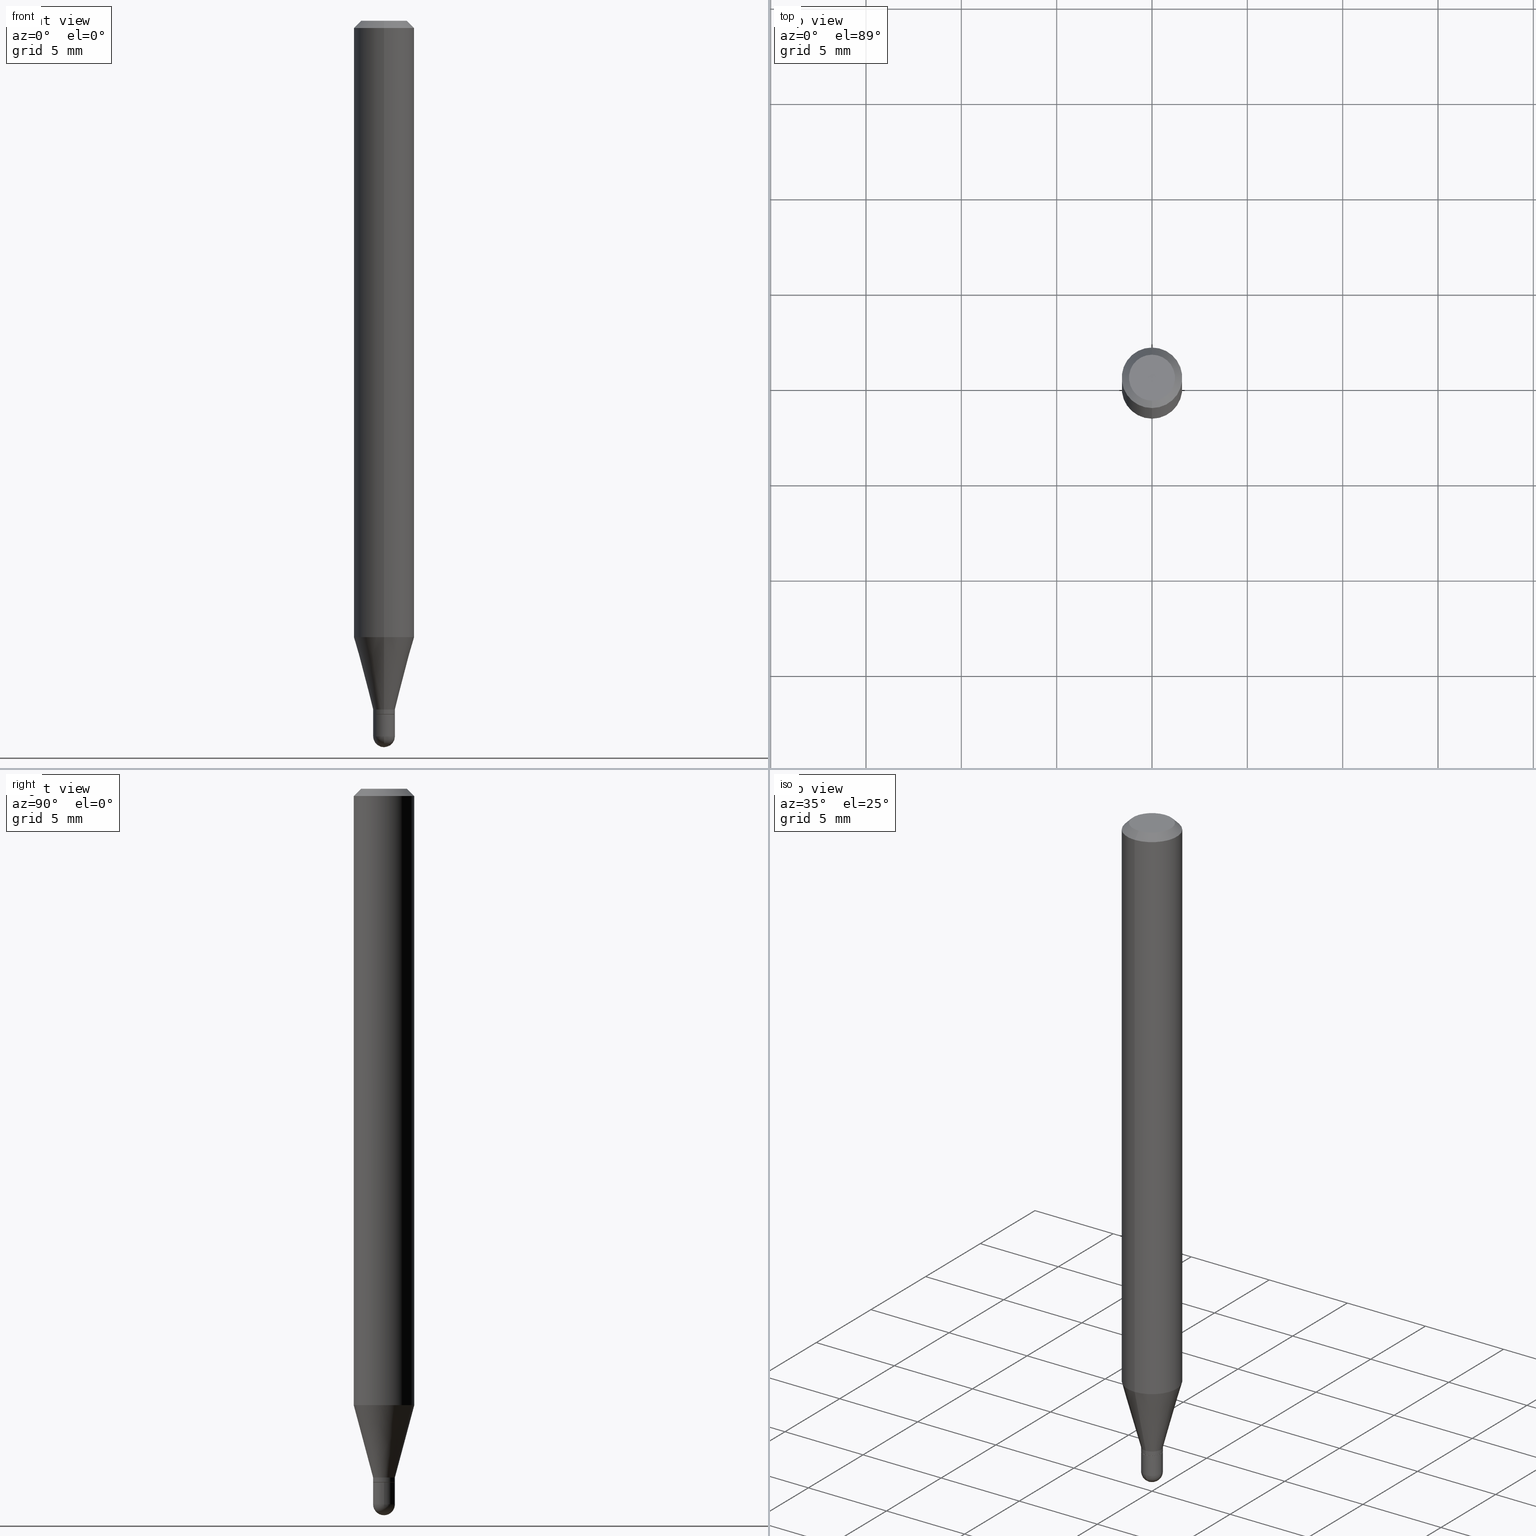
[diagram: canonical four-view strip — front | top / right | iso, engineering-drawing reading convention]
A machine part, canonical four-view strip (front | top / right | iso — engineering-drawing reading convention). The complete STEP part file that produces these views, byte-faithful:
ISO-10303-21;
HEADER;
FILE_DESCRIPTION (( 'STEP AP203' ),
    '1' );
FILE_NAME ('00780.STEP',
    '2024-03-07T18:19:26',
    ( '' ),
    ( '' ),
    'SwSTEP 2.0',
    'SolidWorks 2023',
    '' );
FILE_SCHEMA (( 'CONFIG_CONTROL_DESIGN' ));
ENDSEC;

DATA;
#1 = EDGE_LOOP ( 'NONE', ( #63, #200, #204, #195, #234 ) ) ;
#2 = CARTESIAN_POINT ( 'NONE',  ( -1.598721155459865688E-16, -0.02250000000000518599, -1.477500000000000036 ) ) ;
#3 = EDGE_CURVE ( 'NONE', #328, #434, #445, .T. ) ;
#4 = CARTESIAN_POINT ( 'NONE',  ( -1.571166602479404241E-16, -0.02249999999999992284, 7.855882383036822787E-17 ) ) ;
#5 = ADVANCED_FACE ( 'NONE', ( #418 ), #288, .T. ) ;
#6 = AXIS2_PLACEMENT_3D ( 'NONE', #472, #294, #150 ) ;
#7 = ORIENTED_EDGE ( 'NONE', *, *, #211, .T. ) ;
#8 = DATE_AND_TIME ( #484, #383 ) ;
#9 = DIRECTION ( 'NONE',  ( -2.445453483814696650E-29, 3.491503281349710871E-15, 1.000000000000000000 ) ) ;
#10 = CARTESIAN_POINT ( 'NONE',  ( 3.501911330457115844E-29, -4.999801277223385014E-15, -1.432000000000000162 ) ) ;
#11 = PERSON_AND_ORGANIZATION ( #131, #299 ) ;
#12 = CARTESIAN_POINT ( 'NONE',  ( 2.166495059304660082E-46, -3.093219584283591612E-32, -8.859277322769250209E-18 ) ) ;
#13 = CC_DESIGN_APPROVAL ( #424, ( #283 ) ) ;
#14 = APPROVAL_ROLE ( '' ) ;
#15 = EDGE_LOOP ( 'NONE', ( #254, #162 ) ) ;
#16 = AXIS2_PLACEMENT_3D ( 'NONE', #382, #417, #66 ) ;
#17 = VECTOR ( 'NONE', #454, 39.37007874015748143 ) ;
#18 = ORIENTED_EDGE ( 'NONE', *, *, #175, .F. ) ;
#19 = AXIS2_PLACEMENT_3D ( 'NONE', #349, #385, #69 ) ;
#20 = EDGE_CURVE ( 'NONE', #103, #124, #176, .T. ) ;
#21 = ORIENTED_EDGE ( 'NONE', *, *, #235, .T. ) ;
#22 = CIRCLE ( 'NONE', #29, 0.02249999999999999917 ) ;
#23 = DIRECTION ( 'NONE',  ( 2.438088387897960049E-29, -3.491481338843145188E-15, -1.000000000000000000 ) ) ;
#24 = EDGE_LOOP ( 'NONE', ( #18, #185, #388, #369 ) ) ;
#25 = CARTESIAN_POINT ( 'NONE',  ( 4.364351673553919652E-16, 0.06249999999999995143, -0.01500000000000022669 ) ) ;
#26 = ORIENTED_EDGE ( 'NONE', *, *, #496, .T. ) ;
#27 = LINE ( 'NONE', #266, #151 ) ;
#28 = CIRCLE ( 'NONE', #314, 0.02249999999999992284 ) ;
#29 = AXIS2_PLACEMENT_3D ( 'NONE', #427, #231, #82 ) ;
#30 = DIRECTION ( 'NONE',  ( -2.445453483814696370E-29, 3.491503281349710477E-15, 1.000000000000000000 ) ) ;
#31 = APPROVAL_STATUS ( 'not_yet_approved' ) ;
#32 = CARTESIAN_POINT ( 'NONE',  ( 3.477434853984498792E-29, -4.964917666079289366E-15, -1.421999999999999931 ) ) ;
#33 = EDGE_CURVE ( 'NONE', #434, #455, #191, .T. ) ;
#34 = DIRECTION ( 'NONE',  ( -6.982962677686265133E-15, -1.000000000000000000, 0.000000000000000000 ) ) ;
#35 = VERTEX_POINT ( 'NONE', #381 ) ;
#36 = DIRECTION ( 'NONE',  ( -6.982962677686265922E-15, -1.000000000000000000, 0.000000000000000000 ) ) ;
#37 = VECTOR ( 'NONE', #332, 39.37007874015748143 ) ;
#38 = ADVANCED_FACE ( 'NONE', ( #187 ), #346, .T. ) ;
#39 = ORIENTED_EDGE ( 'NONE', *, *, #98, .F. ) ;
#40 =( NAMED_UNIT ( * ) PLANE_ANGLE_UNIT ( ) SI_UNIT ( $, .RADIAN. ) );
#41 = DIRECTION ( 'NONE',  ( -2.445453483814696650E-29, 3.491503281349710871E-15, 1.000000000000000000 ) ) ;
#42 = DIMENSIONAL_EXPONENTS ( 1.000000000000000000, 0.000000000000000000, 0.000000000000000000, 0.000000000000000000, 0.000000000000000000, 0.000000000000000000, 0.000000000000000000 ) ;
#43 = DIRECTION ( 'NONE',  ( -6.982962677686266711E-15, -1.000000000000000000, 3.491503281349711266E-15 ) ) ;
#44 = ORIENTED_EDGE ( 'NONE', *, *, #3, .F. ) ;
#45 = CALENDAR_DATE ( 2024, 7, 3 ) ;
#46 = FACE_OUTER_BOUND ( 'NONE', #170, .T. ) ;
#47 = APPLICATION_CONTEXT ( 'configuration controlled 3d designs of mechanical parts and assemblies' ) ;
#48 = DIRECTION ( 'NONE',  ( -6.982962677686265922E-15, -1.000000000000000000, 0.000000000000000000 ) ) ;
#49 = ORIENTED_EDGE ( 'NONE', *, *, #20, .T. ) ;
#50 = DIRECTION ( 'NONE',  ( 6.982962677686265922E-15, 1.000000000000000000, 0.000000000000000000 ) ) ;
#51 = PERSON_AND_ORGANIZATION ( #131, #299 ) ;
#52 = EDGE_CURVE ( 'NONE', #292, #328, #329, .T. ) ;
#53 = AXIS2_PLACEMENT_3D ( 'NONE', #32, #193, #34 ) ;
#54 = CONICAL_SURFACE ( 'NONE', #338, 0.02249999999999992284, 0.2617993877991501850 ) ;
#55 = DIRECTION ( 'NONE',  ( -4.937700262164674260E-15, -0.7071067811865632269, 0.7071067811865319186 ) ) ;
#56 = VERTEX_POINT ( 'NONE', #343 ) ;
#57 = MANIFOLD_SOLID_BREP ( 'Body-Move/Copy2[2]', #401 ) ;
#58 = ADVANCED_FACE ( 'NONE', ( #461 ), #378, .T. ) ;
#59 = DIRECTION ( 'NONE',  ( 4.937700262164548042E-15, 0.7071067811865451302, -0.7071067811865499042 ) ) ;
#60 = ORIENTED_EDGE ( 'NONE', *, *, #33, .T. ) ;
#61 = APPROVAL_PERSON_ORGANIZATION ( #265, #221, #471 ) ;
#62 = CARTESIAN_POINT ( 'NONE',  ( 3.501889388822646058E-29, -4.999832698892786526E-15, -1.432000000000000162 ) ) ;
#63 = ORIENTED_EDGE ( 'NONE', *, *, #333, .T. ) ;
#64 = AXIS2_PLACEMENT_3D ( 'NONE', #483, #236, #50 ) ;
#65 = DIRECTION ( 'NONE',  ( -2.445453483814696650E-29, 3.491503281349710871E-15, 1.000000000000000000 ) ) ;
#66 = DIRECTION ( 'NONE',  ( -6.982962677686265133E-15, -1.000000000000000000, 3.491503281349710871E-15 ) ) ;
#67 = DIRECTION ( 'NONE',  ( -2.445453483814696650E-29, 3.491503281349710477E-15, 1.000000000000000000 ) ) ;
#68 = ORIENTED_EDGE ( 'NONE', *, *, #351, .F. ) ;
#69 = DIRECTION ( 'NONE',  ( 1.000000000000000000, 0.000000000000000000, 0.000000000000000000 ) ) ;
#70 = CARTESIAN_POINT ( 'NONE',  ( 3.668180225722047042E-31, -5.237254922024569684E-17, -0.01500000000000000812 ) ) ;
#71 =( CONVERSION_BASED_UNIT ( 'INCH', #228 ) LENGTH_UNIT ( ) NAMED_UNIT ( #42 ) );
#72 = CARTESIAN_POINT ( 'NONE',  ( 3.501889388822646058E-29, -4.999832698892786526E-15, -1.432000000000000162 ) ) ;
#73 = COORDINATED_UNIVERSAL_TIME_OFFSET ( 5, 0, .BEHIND. ) ;
#74 = ORIENTED_EDGE ( 'NONE', *, *, #243, .F. ) ;
#75 = ORIENTED_EDGE ( 'NONE', *, *, #325, .F. ) ;
#76 = ADVANCED_FACE ( 'NONE', ( #263 ), #465, .T. ) ;
#77 = PLANE ( 'NONE',  #159 ) ;
#78 = CIRCLE ( 'NONE', #428, 0.06250000000000000000 ) ;
#79 = ORIENTED_EDGE ( 'NONE', *, *, #419, .T. ) ;
#80 = VECTOR ( 'NONE', #377, 39.37007874015748143 ) ;
#81 = DIRECTION ( 'NONE',  ( -6.982962677686265922E-15, -1.000000000000000000, 4.370956789862821150E-15 ) ) ;
#82 = DIRECTION ( 'NONE',  ( 1.000000000000000000, -6.982962677686269077E-15, 0.000000000000000000 ) ) ;
#83 = AXIS2_PLACEMENT_3D ( 'NONE', #281, #439, #395 ) ;
#84 = PRODUCT_DEFINITION_SHAPE ( 'NONE', 'NONE',  #405 ) ;
#85 = PERSON_AND_ORGANIZATION ( #131, #299 ) ;
#86 = LINE ( 'NONE', #321, #184 ) ;
#87 = ORIENTED_EDGE ( 'NONE', *, *, #243, .T. ) ;
#88 = CARTESIAN_POINT ( 'NONE',  ( 3.668180225722047042E-31, -5.237254922024569684E-17, -0.01500000000000000812 ) ) ;
#89 = DIRECTION ( 'NONE',  ( -1.000000000000000000, 6.982962677686265922E-15, -4.883557194083111780E-29 ) ) ;
#90 = EDGE_LOOP ( 'NONE', ( #415, #21, #68, #44 ) ) ;
#91 = ADVANCED_BREP_SHAPE_REPRESENTATION ( '00780', ( #220, #57, #19 ), #245 ) ;
#92 = CARTESIAN_POINT ( 'NONE',  ( 1.563194018672570129E-16, 0.02199999999999499925, -1.432000000000000162 ) ) ;
#93 = CARTESIAN_POINT ( 'NONE',  ( 3.613180161138538918E-29, -5.158663678140747361E-15, -1.477500000000000036 ) ) ;
#94 = AXIS2_PLACEMENT_3D ( 'NONE', #165, #477, #129 ) ;
#95 = ORIENTED_EDGE ( 'NONE', *, *, #115, .T. ) ;
#96 = CARTESIAN_POINT ( 'NONE',  ( 3.477434853984498792E-29, -4.964917666079289366E-15, -1.421999999999999931 ) ) ;
#97 = ORIENTED_EDGE ( 'NONE', *, *, #462, .F. ) ;
#98 = EDGE_CURVE ( 'NONE', #292, #441, #340, .T. ) ;
#99 = AXIS2_PLACEMENT_3D ( 'NONE', #229, #41, #353 ) ;
#100 = CARTESIAN_POINT ( 'NONE',  ( 0.02249999999999999917, -5.156917937471325857E-15, -1.432000000000000162 ) ) ;
#101 = ORIENTED_EDGE ( 'NONE', *, *, #458, .T. ) ;
#102 = CARTESIAN_POINT ( 'NONE',  ( 0.02249999999999999917, -5.236349137930007031E-15, -1.477500000000000036 ) ) ;
#103 = VERTEX_POINT ( 'NONE', #123 ) ;
#104 = DIRECTION ( 'NONE',  ( -1.000000000000000000, 6.982962677686265922E-15, -4.876176775795935793E-29 ) ) ;
#105 = ORIENTED_EDGE ( 'NONE', *, *, #139, .F. ) ;
#106 = VECTOR ( 'NONE', #313, 39.37007874015748143 ) ;
#107 = EDGE_CURVE ( 'NONE', #304, #437, #463, .T. ) ;
#108 = LINE ( 'NONE', #25, #459 ) ;
#109 = CARTESIAN_POINT ( 'NONE',  ( 0.000000000000000000, 0.000000000000000000, 0.000000000000000000 ) ) ;
#110 = CC_DESIGN_PERSON_AND_ORGANIZATION_ASSIGNMENT ( #85, #132, ( #138 ) ) ;
#111 = DIRECTION ( 'NONE',  ( -6.982962677686265133E-15, -1.000000000000000000, 3.491503281349710871E-15 ) ) ;
#112 = UNCERTAINTY_MEASURE_WITH_UNIT (LENGTH_MEASURE( 1.000000000000000082E-05 ), #71, 'distance_accuracy_value', 'NONE');
#113 = DIRECTION ( 'NONE',  ( -2.445453483814696370E-29, 3.491503281349710477E-15, 1.000000000000000000 ) ) ;
#114 = EDGE_CURVE ( 'NONE', #437, #307, #487, .T. ) ;
#115 = EDGE_CURVE ( 'NONE', #272, #307, #27, .T. ) ;
#116 = AXIS2_PLACEMENT_3D ( 'NONE', #219, #218, #334 ) ;
#117 = CIRCLE ( 'NONE', #83, 0.02250000000000005121 ) ;
#118 = PERSON_AND_ORGANIZATION_ROLE ( 'creator' ) ;
#119 = CARTESIAN_POINT ( 'NONE',  ( 3.668180225722047042E-31, -5.237254922024569684E-17, -0.01500000000000000812 ) ) ;
#120 = EDGE_CURVE ( 'NONE', #304, #272, #127, .T. ) ;
#121 = ORIENTED_EDGE ( 'NONE', *, *, #120, .F. ) ;
#122 = DATE_AND_TIME ( #342, #287 ) ;
#123 = CARTESIAN_POINT ( 'NONE',  ( 3.840629472727447874E-16, 0.04749999999999999362, -1.747056831868805136E-16 ) ) ;
#124 = VERTEX_POINT ( 'NONE', #422 ) ;
#125 = DIRECTION ( 'NONE',  ( -2.445453483814696650E-29, 3.491503281349710871E-15, 1.000000000000000000 ) ) ;
#126 = EDGE_LOOP ( 'NONE', ( #491, #7, #121, #404 ) ) ;
#127 = CIRCLE ( 'NONE', #337, 0.06250000000000000000 ) ;
#128 = APPROVAL_STATUS ( 'not_yet_approved' ) ;
#129 = DIRECTION ( 'NONE',  ( 1.000000000000000000, -6.982962677686269077E-15, 0.000000000000000000 ) ) ;
#130 = CIRCLE ( 'NONE', #451, 0.06250000000000000000 ) ;
#131 = PERSON ( 'UNSPECIFIED', 'UNSPECIFIED', 'UNSPECIFIED', ('UNSPECIFIED'), ('UNSPECIFIED'), ('UNSPECIFIED') ) ;
#132 = PERSON_AND_ORGANIZATION_ROLE ( 'design_supplier' ) ;
#133 = FACE_OUTER_BOUND ( 'NONE', #453, .T. ) ;
#134 = CARTESIAN_POINT ( 'NONE',  ( 3.501889388822646058E-29, -4.999832698892786526E-15, -1.432000000000000162 ) ) ;
#135 = ORIENTED_EDGE ( 'NONE', *, *, #235, .F. ) ;
#136 = ORIENTED_EDGE ( 'NONE', *, *, #114, .F. ) ;
#137 = CARTESIAN_POINT ( 'NONE',  ( 3.500666662080738947E-29, -4.998086947252112378E-15, -1.431500000000000217 ) ) ;
#138 = PRODUCT_DEFINITION_FORMATION_WITH_SPECIFIED_SOURCE ( 'ANY', '', #323, .NOT_KNOWN. ) ;
#139 = EDGE_CURVE ( 'NONE', #360, #511, #432, .T. ) ;
#140 = DATE_AND_TIME ( #320, #344 ) ;
#141 = CARTESIAN_POINT ( 'NONE',  ( -4.364351673553605587E-16, -0.06250000000000446865, -1.272717967697244879 ) ) ;
#142 = DIRECTION ( 'NONE',  ( -2.445453483814696650E-29, 3.491503281349710871E-15, 1.000000000000000000 ) ) ;
#143 = CC_DESIGN_PERSON_AND_ORGANIZATION_ASSIGNMENT ( #505, #118, ( #405 ) ) ;
#144 = APPROVAL_DATE_TIME ( #173, #424 ) ;
#145 = APPLICATION_CONTEXT ( 'configuration controlled 3d designs of mechanical parts and assemblies' ) ;
#146 = ORIENTED_EDGE ( 'NONE', *, *, #498, .F. ) ;
#147 = DIRECTION ( 'NONE',  ( 1.000000000000000000, -6.982962677686266711E-15, 4.876176775795935793E-29 ) ) ;
#148 = DIRECTION ( 'NONE',  ( -2.445453483814696650E-29, 3.491503281349710871E-15, 1.000000000000000000 ) ) ;
#149 = FACE_OUTER_BOUND ( 'NONE', #126, .T. ) ;
#150 = DIRECTION ( 'NONE',  ( 1.000000000000000000, -6.982962677686269077E-15, 0.000000000000000000 ) ) ;
#151 = VECTOR ( 'NONE', #30, 39.37007874015748143 ) ;
#152 = CIRCLE ( 'NONE', #177, 0.02249999999999999917 ) ;
#153 = CARTESIAN_POINT ( 'NONE',  ( -1.571166602479056403E-16, -0.02250000000000488762, -1.421999999999999931 ) ) ;
#154 = CARTESIAN_POINT ( 'NONE',  ( 0.000000000000000000, 0.000000000000000000, 0.000000000000000000 ) ) ;
#155 = EDGE_CURVE ( 'NONE', #207, #35, #28, .T. ) ;
#156 = DIRECTION ( 'NONE',  ( 1.000000000000000000, -6.982962677686266711E-15, 4.876176775795935793E-29 ) ) ;
#157 = PERSON_AND_ORGANIZATION_ROLE ( 'design_owner' ) ;
#158 = CARTESIAN_POINT ( 'NONE',  ( 3.477434853984498792E-29, -4.964917666079289366E-15, -1.421999999999999931 ) ) ;
#159 = AXIS2_PLACEMENT_3D ( 'NONE', #225, #512, #163 ) ;
#160 = DIRECTION ( 'NONE',  ( -2.445468806185136597E-29, 3.491481338843145583E-15, 1.000000000000000000 ) ) ;
#161 = ADVANCED_FACE ( 'NONE', ( #375 ), #336, .T. ) ;
#162 = ORIENTED_EDGE ( 'NONE', *, *, #370, .T. ) ;
#163 = DIRECTION ( 'NONE',  ( 6.982962677686265922E-15, 1.000000000000000000, -3.491503281349710477E-15 ) ) ;
#164 = ORIENTED_EDGE ( 'NONE', *, *, #290, .F. ) ;
#165 = CARTESIAN_POINT ( 'NONE',  ( 3.613180161138538918E-29, -5.158663678140747361E-15, -1.477500000000000036 ) ) ;
#166 = VERTEX_POINT ( 'NONE', #278 ) ;
#167 = AXIS2_PLACEMENT_3D ( 'NONE', #154, #296, #111 ) ;
#168 = CARTESIAN_POINT ( 'NONE',  ( 3.501889388822646058E-29, -4.999832698892786526E-15, -1.432000000000000162 ) ) ;
#169 = AXIS2_PLACEMENT_3D ( 'NONE', #240, #480, #390 ) ;
#170 = EDGE_LOOP ( 'NONE', ( #74, #178, #79, #164 ) ) ;
#171 = SECURITY_CLASSIFICATION_LEVEL ( 'unclassified' ) ;
#172 = CARTESIAN_POINT ( 'NONE',  ( 3.668180225722047042E-31, -5.237254922024569684E-17, -0.01500000000000000812 ) ) ;
#173 = DATE_AND_TIME ( #361, #286 ) ;
#174 = CARTESIAN_POINT ( 'NONE',  ( 0.000000000000000000, 0.000000000000000000, 0.000000000000000000 ) ) ;
#175 = EDGE_CURVE ( 'NONE', #124, #103, #379, .T. ) ;
#176 = CIRCLE ( 'NONE', #267, 0.04749999999999999362 ) ;
#177 = AXIS2_PLACEMENT_3D ( 'NONE', #93, #393, #316 ) ;
#178 = ORIENTED_EDGE ( 'NONE', *, *, #482, .T. ) ;
#179 = EDGE_CURVE ( 'NONE', #307, #437, #130, .T. ) ;
#180 = EDGE_CURVE ( 'NONE', #407, #328, #117, .T. ) ;
#181 = ORIENTED_EDGE ( 'NONE', *, *, #498, .T. ) ;
#182 = FACE_OUTER_BOUND ( 'NONE', #224, .T. ) ;
#183 = ORIENTED_EDGE ( 'NONE', *, *, #466, .T. ) ;
#184 = VECTOR ( 'NONE', #474, 39.37007874015748143 ) ;
#185 = ORIENTED_EDGE ( 'NONE', *, *, #421, .T. ) ;
#186 = CARTESIAN_POINT ( 'NONE',  ( 3.112372588018788415E-29, -4.443698960447666136E-15, -1.272717967697245101 ) ) ;
#187 = FACE_OUTER_BOUND ( 'NONE', #324, .T. ) ;
#188 = DIRECTION ( 'NONE',  ( -2.445453483814696650E-29, 3.491503281349710871E-15, 1.000000000000000000 ) ) ;
#189 = AXIS2_PLACEMENT_3D ( 'NONE', #168, #315, #36 ) ;
#190 = ADVANCED_FACE ( 'NONE', ( #319 ), #396, .T. ) ;
#191 = LINE ( 'NONE', #497, #330 ) ;
#192 = COORDINATED_UNIVERSAL_TIME_OFFSET ( 5, 0, .BEHIND. ) ;
#193 = DIRECTION ( 'NONE',  ( -2.445453483814696650E-29, 3.491503281349710871E-15, 1.000000000000000000 ) ) ;
#194 = CARTESIAN_POINT ( 'NONE',  ( -4.364351673553916201E-16, -0.06250000000000000000, 2.182189550843569295E-16 ) ) ;
#195 = ORIENTED_EDGE ( 'NONE', *, *, #33, .F. ) ;
#196 = CYLINDRICAL_SURFACE ( 'NONE', #367, 0.06250000000000000000 ) ;
#197 = ORIENTED_EDGE ( 'NONE', *, *, #139, .T. ) ;
#198 = DIRECTION ( 'NONE',  ( 2.445453483814696650E-29, -3.491503281349710871E-15, -1.000000000000000000 ) ) ;
#199 = CC_DESIGN_PERSON_AND_ORGANIZATION_ASSIGNMENT ( #11, #244, ( #138 ) ) ;
#200 = ORIENTED_EDGE ( 'NONE', *, *, #98, .T. ) ;
#201 = DIRECTION ( 'NONE',  ( -6.982962677686265922E-15, -1.000000000000000000, 3.491503281349710871E-15 ) ) ;
#202 = ORIENTED_EDGE ( 'NONE', *, *, #20, .F. ) ;
#203 = FACE_OUTER_BOUND ( 'NONE', #430, .T. ) ;
#204 = ORIENTED_EDGE ( 'NONE', *, *, #279, .F. ) ;
#205 = DATE_TIME_ROLE ( 'creation_date' ) ;
#206 = DIRECTION ( 'NONE',  ( -6.982962677686265922E-15, -1.000000000000000000, 3.483106191921935554E-15 ) ) ;
#207 = VERTEX_POINT ( 'NONE', #392 ) ;
#208 = APPROVAL ( #356, 'UNSPECIFIED' ) ;
#209 = LINE ( 'NONE', #331, #17 ) ;
#210 = ORIENTED_EDGE ( 'NONE', *, *, #370, .F. ) ;
#211 = EDGE_CURVE ( 'NONE', #207, #272, #86, .T. ) ;
#212 = PLANE ( 'NONE',  #410 ) ;
#213 = ORIENTED_EDGE ( 'NONE', *, *, #233, .T. ) ;
#214 = AXIS2_PLACEMENT_3D ( 'NONE', #134, #142, #48 ) ;
#215 = CC_DESIGN_PERSON_AND_ORGANIZATION_ASSIGNMENT ( #297, #157, ( #323 ) ) ;
#216 = PLANE ( 'NONE',  #402 ) ;
#217 = DIRECTION ( 'NONE',  ( -6.982962677686265133E-15, -1.000000000000000000, 0.000000000000000000 ) ) ;
#218 = DIRECTION ( 'NONE',  ( -2.445468806185136597E-29, 3.491481338843145583E-15, 1.000000000000000000 ) ) ;
#219 = CARTESIAN_POINT ( 'NONE',  ( 3.613180161138538918E-29, -5.158663678140747361E-15, -1.477500000000000036 ) ) ;
#220 = MANIFOLD_SOLID_BREP ( 'Body-Move/Copy2[1]', #507 ) ;
#221 = APPROVAL ( #31, 'UNSPECIFIED' ) ;
#222 = DIRECTION ( 'NONE',  ( -2.445453483814696650E-29, 3.491503281349710871E-15, 1.000000000000000000 ) ) ;
#223 = DIRECTION ( 'NONE',  ( -6.982962677686266711E-15, -1.000000000000000000, 3.491503281349711266E-15 ) ) ;
#224 = EDGE_LOOP ( 'NONE', ( #105, #289 ) ) ;
#225 = CARTESIAN_POINT ( 'NONE',  ( 3.316907271900976096E-16, 0.04749999999999999362, -1.702760445254958762E-16 ) ) ;
#226 = ORIENTED_EDGE ( 'NONE', *, *, #107, .T. ) ;
#227 = AXIS2_PLACEMENT_3D ( 'NONE', #406, #65, #374 ) ;
#228 = LENGTH_MEASURE_WITH_UNIT ( LENGTH_MEASURE( 0.02539999999999999897 ), #389 );
#229 = CARTESIAN_POINT ( 'NONE',  ( 3.477434853984498792E-29, -4.964917666079289366E-15, -1.421999999999999931 ) ) ;
#230 = ORIENTED_EDGE ( 'NONE', *, *, #175, .T. ) ;
#231 = DIRECTION ( 'NONE',  ( -2.445468806185136597E-29, 3.491481338843145583E-15, 1.000000000000000000 ) ) ;
#232 = DIRECTION ( 'NONE',  ( 6.982962677686265922E-15, 1.000000000000000000, 0.000000000000000000 ) ) ;
#233 = EDGE_CURVE ( 'NONE', #56, #35, #436, .T. ) ;
#234 = ORIENTED_EDGE ( 'NONE', *, *, #351, .T. ) ;
#235 = EDGE_CURVE ( 'NONE', #407, #166, #469, .T. ) ;
#236 = DIRECTION ( 'NONE',  ( 1.000000000000000000, -6.982962677686265922E-15, 4.883557194083112340E-29 ) ) ;
#237 = ORIENTED_EDGE ( 'NONE', *, *, #52, .F. ) ;
#238 = CIRCLE ( 'NONE', #479, 0.02249999999999992284 ) ;
#239 = PERSON_AND_ORGANIZATION ( #131, #299 ) ;
#240 = CARTESIAN_POINT ( 'NONE',  ( 3.611256036987885434E-29, -5.161419133438828807E-15, -1.477500000000000036 ) ) ;
#241 = FACE_OUTER_BOUND ( 'NONE', #275, .T. ) ;
#242 = PRODUCT_RELATED_PRODUCT_CATEGORY ( 'detail', '', ( #323 ) ) ;
#243 = EDGE_CURVE ( 'NONE', #511, #354, #274, .T. ) ;
#244 = PERSON_AND_ORGANIZATION_ROLE ( 'creator' ) ;
#245 =( GEOMETRIC_REPRESENTATION_CONTEXT ( 3 ) GLOBAL_UNCERTAINTY_ASSIGNED_CONTEXT ( ( #112 ) ) GLOBAL_UNIT_ASSIGNED_CONTEXT ( ( #71, #40, #508 ) ) REPRESENTATION_CONTEXT ( 'NONE', 'WORKASPACE' ) );
#246 = ORIENTED_EDGE ( 'NONE', *, *, #462, .T. ) ;
#247 = VECTOR ( 'NONE', #113, 39.37007874015748143 ) ;
#248 = DIRECTION ( 'NONE',  ( -6.982962677686265922E-15, -1.000000000000000000, 0.000000000000000000 ) ) ;
#249 = ORIENTED_EDGE ( 'NONE', *, *, #290, .T. ) ;
#250 = FACE_OUTER_BOUND ( 'NONE', #90, .T. ) ;
#251 = FACE_OUTER_BOUND ( 'NONE', #448, .T. ) ;
#252 = ADVANCED_FACE ( 'NONE', ( #46 ), #488, .T. ) ;
#253 = LINE ( 'NONE', #153, #277 ) ;
#254 = ORIENTED_EDGE ( 'NONE', *, *, #279, .T. ) ;
#255 = APPROVAL_PERSON_ORGANIZATION ( #51, #208, #14 ) ;
#256 = ADVANCED_FACE ( 'NONE', ( #284 ), #196, .T. ) ;
#257 = CYLINDRICAL_SURFACE ( 'NONE', #227, 0.06250000000000000000 ) ;
#258 = ORIENTED_EDGE ( 'NONE', *, *, #496, .F. ) ;
#259 = AXIS2_PLACEMENT_3D ( 'NONE', #109, #160, #156 ) ;
#260 = AXIS2_PLACEMENT_3D ( 'NONE', #10, #486, #359 ) ;
#261 = ADVANCED_FACE ( 'NONE', ( #203 ), #485, .T. ) ;
#262 = CARTESIAN_POINT ( 'NONE',  ( -4.287811248607203282E-16, -0.06250000000000005551, -0.01499999999999979128 ) ) ;
#263 = FACE_OUTER_BOUND ( 'NONE', #371, .T. ) ;
#264 = DIRECTION ( 'NONE',  ( -6.982962677686265922E-15, -1.000000000000000000, 4.370956789862821150E-15 ) ) ;
#265 = PERSON_AND_ORGANIZATION ( #131, #299 ) ;
#266 = CARTESIAN_POINT ( 'NONE',  ( 4.440892098500625669E-16, 0.06250000000000000000, -2.182189550843569295E-16 ) ) ;
#267 = AXIS2_PLACEMENT_3D ( 'NONE', #468, #222, #223 ) ;
#268 = DIRECTION ( 'NONE',  ( -6.982962677686265922E-15, -1.000000000000000000, 3.483106191921935554E-15 ) ) ;
#269 = ORIENTED_EDGE ( 'NONE', *, *, #233, .F. ) ;
#270 = APPROVAL_DATE_TIME ( #122, #221 ) ;
#271 = DIRECTION ( 'NONE',  ( 6.982962677686265922E-15, 1.000000000000000000, -3.483106191921935554E-15 ) ) ;
#272 = VERTEX_POINT ( 'NONE', #431 ) ;
#273 = DIRECTION ( 'NONE',  ( -2.445453483814696650E-29, 3.491503281349710871E-15, 1.000000000000000000 ) ) ;
#274 = LINE ( 'NONE', #92, #106 ) ;
#275 = EDGE_LOOP ( 'NONE', ( #197, #87, #146, #310 ) ) ;
#276 = AXIS2_PLACEMENT_3D ( 'NONE', #72, #188, #305 ) ;
#277 = VECTOR ( 'NONE', #449, 39.37007874015749564 ) ;
#278 = CARTESIAN_POINT ( 'NONE',  ( 1.571166602479772787E-16, 0.02249999999999486439, -1.477500000000000036 ) ) ;
#279 = EDGE_CURVE ( 'NONE', #455, #441, #22, .T. ) ;
#280 = COORDINATED_UNIVERSAL_TIME_OFFSET ( 5, 0, .BEHIND. ) ;
#281 = CARTESIAN_POINT ( 'NONE',  ( 3.611256036987885434E-29, -5.161419133438828807E-15, -1.477500000000000036 ) ) ;
#282 = ORIENTED_EDGE ( 'NONE', *, *, #120, .T. ) ;
#283 = SECURITY_CLASSIFICATION ( '', '', #171 ) ;
#284 = FACE_OUTER_BOUND ( 'NONE', #450, .T. ) ;
#285 = VECTOR ( 'NONE', #55, 39.37007874015748143 ) ;
#286 = LOCAL_TIME ( 13, 19, 26.00000000000000000, #368 ) ;
#287 = LOCAL_TIME ( 13, 19, 26.00000000000000000, #192 ) ;
#288 = CONICAL_SURFACE ( 'NONE', #478, 0.06250000000000000000, 0.7853981633974483900 ) ;
#289 = ORIENTED_EDGE ( 'NONE', *, *, #482, .F. ) ;
#290 = EDGE_CURVE ( 'NONE', #354, #56, #238, .T. ) ;
#291 = DIRECTION ( 'NONE',  ( -6.982962677686265133E-15, -1.000000000000000000, 0.000000000000000000 ) ) ;
#292 = VERTEX_POINT ( 'NONE', #362 ) ;
#293 = LINE ( 'NONE', #262, #37 ) ;
#294 = DIRECTION ( 'NONE',  ( -2.445468806185136597E-29, 3.491481338843145583E-15, 1.000000000000000000 ) ) ;
#295 = AXIS2_PLACEMENT_3D ( 'NONE', #12, #9, #43 ) ;
#296 = DIRECTION ( 'NONE',  ( -2.445453483814696650E-29, 3.491503281349710871E-15, 1.000000000000000000 ) ) ;
#297 = PERSON_AND_ORGANIZATION ( #131, #299 ) ;
#298 = DIRECTION ( 'NONE',  ( -2.445468806185136877E-29, 3.491481338843145188E-15, 1.000000000000000000 ) ) ;
#299 = ORGANIZATION ( 'UNSPECIFIED', 'UNSPECIFIED', '' ) ;
#300 = DIRECTION ( 'NONE',  ( 2.445453483814696650E-29, -3.491503281349710871E-15, -1.000000000000000000 ) ) ;
#301 = CIRCLE ( 'NONE', #94, 0.02249999999999999917 ) ;
#302 = EDGE_LOOP ( 'NONE', ( #475, #202, #101, #358 ) ) ;
#303 = DIRECTION ( 'NONE',  ( -6.982962677686265133E-15, -1.000000000000000000, 0.000000000000000000 ) ) ;
#304 = VERTEX_POINT ( 'NONE', #141 ) ;
#305 = DIRECTION ( 'NONE',  ( -6.982962677686265922E-15, -1.000000000000000000, 0.000000000000000000 ) ) ;
#306 = ADVANCED_FACE ( 'NONE', ( #133 ), #77, .F. ) ;
#307 = VERTEX_POINT ( 'NONE', #309 ) ;
#308 = CARTESIAN_POINT ( 'NONE',  ( 3.500666662080738947E-29, -4.998086947252112378E-15, -1.431500000000000217 ) ) ;
#309 = CARTESIAN_POINT ( 'NONE',  ( 4.440892098500938748E-16, 0.06249999999999995143, -0.01500000000000022669 ) ) ;
#310 = ORIENTED_EDGE ( 'NONE', *, *, #419, .F. ) ;
#311 = CC_DESIGN_APPROVAL ( #221, ( #405 ) ) ;
#312 = APPROVAL_DATE_TIME ( #8, #208 ) ;
#313 = DIRECTION ( 'NONE',  ( 5.024295867788190974E-15, 0.7071067811865681119, 0.7071067811865270336 ) ) ;
#314 = AXIS2_PLACEMENT_3D ( 'NONE', #158, #423, #217 ) ;
#315 = DIRECTION ( 'NONE',  ( -2.445453483814696650E-29, 3.491503281349710871E-15, 1.000000000000000000 ) ) ;
#316 = DIRECTION ( 'NONE',  ( 1.000000000000000000, -6.982962677686269077E-15, 0.000000000000000000 ) ) ;
#317 = ORIENTED_EDGE ( 'NONE', *, *, #333, .F. ) ;
#318 = SHAPE_DEFINITION_REPRESENTATION ( #84, #91 ) ;
#319 = FACE_OUTER_BOUND ( 'NONE', #24, .T. ) ;
#320 = CALENDAR_DATE ( 2024, 7, 3 ) ;
#321 = CARTESIAN_POINT ( 'NONE',  ( 1.598721155460567527E-16, 0.02249999999999495806, -1.421999999999999931 ) ) ;
#322 = DATE_AND_TIME ( #45, #326 ) ;
#323 = PRODUCT ( '00780', '00780', '', ( #502 ) ) ;
#324 = EDGE_LOOP ( 'NONE', ( #348, #470, #183, #258 ) ) ;
#325 = EDGE_CURVE ( 'NONE', #35, #207, #347, .T. ) ;
#326 = LOCAL_TIME ( 13, 19, 26.00000000000000000, #399 ) ;
#327 = CARTESIAN_POINT ( 'NONE',  ( 3.501889388822646058E-29, -4.999832698892786526E-15, -1.432000000000000162 ) ) ;
#328 = VERTEX_POINT ( 'NONE', #2 ) ;
#329 = CIRCLE ( 'NONE', #116, 0.02249999999999999917 ) ;
#330 = VECTOR ( 'NONE', #298, 39.37007874015748143 ) ;
#331 = CARTESIAN_POINT ( 'NONE',  ( 1.598721155460219689E-16, 0.02249999999999992284, -7.855882383036822787E-17 ) ) ;
#332 = DIRECTION ( 'NONE',  ( -4.851104656540964275E-15, -0.7071067811865500152, -0.7071067811865450192 ) ) ;
#333 = EDGE_CURVE ( 'NONE', #166, #292, #301, .T. ) ;
#334 = DIRECTION ( 'NONE',  ( 1.000000000000000000, -6.982962677686269077E-15, 0.000000000000000000 ) ) ;
#335 = CARTESIAN_POINT ( 'NONE',  ( 3.611256036987885434E-29, -5.161419133438828807E-15, -1.477500000000000036 ) ) ;
#336 = CYLINDRICAL_SURFACE ( 'NONE', #167, 0.02249999999999992284 ) ;
#337 = AXIS2_PLACEMENT_3D ( 'NONE', #506, #509, #264 ) ;
#338 = AXIS2_PLACEMENT_3D ( 'NONE', #96, #148, #291 ) ;
#339 = APPLICATION_PROTOCOL_DEFINITION ( 'international standard', 'config_control_design', 1994, #145 ) ;
#340 = LINE ( 'NONE', #501, #80 ) ;
#341 = ADVANCED_FACE ( 'NONE', ( #250 ), #412, .T. ) ;
#342 = CALENDAR_DATE ( 2024, 7, 3 ) ;
#343 = CARTESIAN_POINT ( 'NONE',  ( -1.571166602479059608E-16, -0.02250000000000499864, -1.431500000000000217 ) ) ;
#344 = LOCAL_TIME ( 13, 19, 26.00000000000000000, #73 ) ;
#345 = DIRECTION ( 'NONE',  ( -2.445453483814696650E-29, 3.491503281349710871E-15, 1.000000000000000000 ) ) ;
#346 = CONICAL_SURFACE ( 'NONE', #53, 0.02249999999999992284, 0.2617993877991501850 ) ;
#347 = CIRCLE ( 'NONE', #99, 0.02249999999999992284 ) ;
#348 = ORIENTED_EDGE ( 'NONE', *, *, #211, .F. ) ;
#349 = CARTESIAN_POINT ( 'NONE',  ( 0.000000000000000000, 0.000000000000000000, 0.000000000000000000 ) ) ;
#350 = DIRECTION ( 'NONE',  ( -2.445453483814696650E-29, 3.491503281349710871E-15, 1.000000000000000000 ) ) ;
#351 = EDGE_CURVE ( 'NONE', #434, #166, #152, .T. ) ;
#352 = EDGE_LOOP ( 'NONE', ( #181, #246, #75, #269 ) ) ;
#353 = DIRECTION ( 'NONE',  ( -6.982962677686265133E-15, -1.000000000000000000, 0.000000000000000000 ) ) ;
#354 = VERTEX_POINT ( 'NONE', #481 ) ;
#355 = CIRCLE ( 'NONE', #442, 0.02249999999999992284 ) ;
#356 = APPROVAL_STATUS ( 'not_yet_approved' ) ;
#357 = DIRECTION ( 'NONE',  ( -2.445453483814696650E-29, 3.491503281349710871E-15, 1.000000000000000000 ) ) ;
#358 = ORIENTED_EDGE ( 'NONE', *, *, #179, .T. ) ;
#359 = DIRECTION ( 'NONE',  ( 1.000000000000000000, -6.982962677686269077E-15, 0.000000000000000000 ) ) ;
#360 = VERTEX_POINT ( 'NONE', #444 ) ;
#361 = CALENDAR_DATE ( 2024, 7, 3 ) ;
#362 = CARTESIAN_POINT ( 'NONE',  ( -0.02249999999999999917, -4.919360362136043898E-15, -1.477500000000000036 ) ) ;
#363 = ADVANCED_FACE ( 'NONE', ( #241 ), #433, .T. ) ;
#364 = CC_DESIGN_SECURITY_CLASSIFICATION ( #283, ( #138 ) ) ;
#365 = CC_DESIGN_DATE_AND_TIME_ASSIGNMENT ( #140, #205, ( #405 ) ) ;
#366 = AXIS2_PLACEMENT_3D ( 'NONE', #119, #345, #268 ) ;
#367 = AXIS2_PLACEMENT_3D ( 'NONE', #174, #357, #201 ) ;
#368 = COORDINATED_UNIVERSAL_TIME_OFFSET ( 5, 0, .BEHIND. ) ;
#369 = ORIENTED_EDGE ( 'NONE', *, *, #458, .F. ) ;
#370 = EDGE_CURVE ( 'NONE', #441, #455, #510, .T. ) ;
#371 = EDGE_LOOP ( 'NONE', ( #97, #249, #213, #391 ) ) ;
#372 = AXIS2_PLACEMENT_3D ( 'NONE', #335, #89, #232 ) ;
#373 = CARTESIAN_POINT ( 'NONE',  ( 1.571166602479759968E-16, 0.02249999999999499969, -1.432000000000000162 ) ) ;
#374 = DIRECTION ( 'NONE',  ( -6.982962677686265922E-15, -1.000000000000000000, 3.491503281349710871E-15 ) ) ;
#375 = FACE_OUTER_BOUND ( 'NONE', #352, .T. ) ;
#376 = CARTESIAN_POINT ( 'NONE',  ( -0.02249999999999999917, -4.919360362136043898E-15, -1.432000000000000162 ) ) ;
#377 = DIRECTION ( 'NONE',  ( -2.445468806185136877E-29, 3.491481338843145188E-15, 1.000000000000000000 ) ) ;
#378 = CYLINDRICAL_SURFACE ( 'NONE', #259, 0.02249999999999999917 ) ;
#379 = CIRCLE ( 'NONE', #295, 0.04749999999999999362 ) ;
#380 = AXIS2_PLACEMENT_3D ( 'NONE', #88, #198, #443 ) ;
#381 = CARTESIAN_POINT ( 'NONE',  ( -1.571166602479056403E-16, -0.02250000000000488762, -1.421999999999999931 ) ) ;
#382 = CARTESIAN_POINT ( 'NONE',  ( 0.000000000000000000, 0.000000000000000000, 0.000000000000000000 ) ) ;
#383 = LOCAL_TIME ( 13, 19, 26.00000000000000000, #280 ) ;
#384 = ORIENTED_EDGE ( 'NONE', *, *, #3, .T. ) ;
#385 = DIRECTION ( 'NONE',  ( 0.000000000000000000, 0.000000000000000000, 1.000000000000000000 ) ) ;
#386 = DIRECTION ( 'NONE',  ( -2.445453483814696370E-29, 3.491503281349710477E-15, 1.000000000000000000 ) ) ;
#387 = VECTOR ( 'NONE', #386, 39.37007874015748143 ) ;
#388 = ORIENTED_EDGE ( 'NONE', *, *, #114, .T. ) ;
#389 =( LENGTH_UNIT ( ) NAMED_UNIT ( * ) SI_UNIT ( $, .METRE. ) );
#390 = DIRECTION ( 'NONE',  ( 6.982962677686265922E-15, 1.000000000000000000, 0.000000000000000000 ) ) ;
#391 = ORIENTED_EDGE ( 'NONE', *, *, #155, .F. ) ;
#392 = CARTESIAN_POINT ( 'NONE',  ( 3.019806626980753384E-16, 0.02249999999999496153, -1.421999999999999931 ) ) ;
#393 = DIRECTION ( 'NONE',  ( -2.445468806185136597E-29, 3.491481338843145583E-15, 1.000000000000000000 ) ) ;
#394 = ORIENTED_EDGE ( 'NONE', *, *, #115, .F. ) ;
#395 = DIRECTION ( 'NONE',  ( -7.105427357600999492E-15, -1.000000000000000000, 0.000000000000000000 ) ) ;
#396 = CONICAL_SURFACE ( 'NONE', #380, 0.06250000000000000000, 0.7853981633974483900 ) ;
#397 = DIRECTION ( 'NONE',  ( -6.982962677686265133E-15, -1.000000000000000000, 0.000000000000000000 ) ) ;
#398 = CARTESIAN_POINT ( 'NONE',  ( 3.667241147202378433E-29, -5.238599735913759294E-15, -1.500000000000000222 ) ) ;
#399 = COORDINATED_UNIVERSAL_TIME_OFFSET ( 5, 0, .BEHIND. ) ;
#400 = PERSON_AND_ORGANIZATION ( #131, #299 ) ;
#401 = CLOSED_SHELL ( 'NONE', ( #161, #363, #190, #456, #476, #38, #256, #5, #306, #440, #252, #76 ) ) ;
#402 = AXIS2_PLACEMENT_3D ( 'NONE', #327, #67, #414 ) ;
#403 = CARTESIAN_POINT ( 'NONE',  ( -4.364351673553912750E-16, -0.06250000000000005551, -0.01499999999999979128 ) ) ;
#404 = ORIENTED_EDGE ( 'NONE', *, *, #466, .F. ) ;
#405 = PRODUCT_DEFINITION ( 'UNKNOWN', '', #138, #420 ) ;
#406 = CARTESIAN_POINT ( 'NONE',  ( 0.000000000000000000, 0.000000000000000000, 0.000000000000000000 ) ) ;
#407 = VERTEX_POINT ( 'NONE', #398 ) ;
#408 = CC_DESIGN_DATE_AND_TIME_ASSIGNMENT ( #322, #435, ( #283 ) ) ;
#409 = AXIS2_PLACEMENT_3D ( 'NONE', #62, #457, #248 ) ;
#410 = AXIS2_PLACEMENT_3D ( 'NONE', #373, #23, #104 ) ;
#411 = ORIENTED_EDGE ( 'NONE', *, *, #179, .F. ) ;
#412 = SPHERICAL_SURFACE ( 'NONE', #372, 0.02250000000000005121 ) ;
#413 = AXIS2_PLACEMENT_3D ( 'NONE', #500, #495, #147 ) ;
#414 = DIRECTION ( 'NONE',  ( -6.982962677686265922E-15, -1.000000000000000000, 3.491503281349710477E-15 ) ) ;
#415 = ORIENTED_EDGE ( 'NONE', *, *, #180, .F. ) ;
#416 = CARTESIAN_POINT ( 'NONE',  ( -1.536251789090628057E-16, -0.02200000000000499473, -1.432000000000000162 ) ) ;
#417 = DIRECTION ( 'NONE',  ( -2.445453483814696650E-29, 3.491503281349710871E-15, 1.000000000000000000 ) ) ;
#418 = FACE_OUTER_BOUND ( 'NONE', #302, .T. ) ;
#419 = EDGE_CURVE ( 'NONE', #360, #56, #446, .T. ) ;
#420 = DESIGN_CONTEXT ( 'detailed design', #47, 'design' ) ;
#421 = EDGE_CURVE ( 'NONE', #124, #437, #293, .T. ) ;
#422 = CARTESIAN_POINT ( 'NONE',  ( -3.773273898774340269E-16, -0.04749999999999999362, 1.569871285413420132E-16 ) ) ;
#423 = DIRECTION ( 'NONE',  ( -2.445453483814696650E-29, 3.491503281349710871E-15, 1.000000000000000000 ) ) ;
#424 = APPROVAL ( #128, 'UNSPECIFIED' ) ;
#425 = ORIENTED_EDGE ( 'NONE', *, *, #180, .T. ) ;
#426 = DIRECTION ( 'NONE',  ( -2.445453483814696650E-29, 3.491503281349710871E-15, 1.000000000000000000 ) ) ;
#427 = CARTESIAN_POINT ( 'NONE',  ( 3.501911330457115844E-29, -4.999801277223385014E-15, -1.432000000000000162 ) ) ;
#428 = AXIS2_PLACEMENT_3D ( 'NONE', #186, #426, #81 ) ;
#429 = CC_DESIGN_APPROVAL ( #208, ( #138 ) ) ;
#430 = EDGE_LOOP ( 'NONE', ( #135, #425, #237, #317 ) ) ;
#431 = CARTESIAN_POINT ( 'NONE',  ( 4.440892098500934804E-16, 0.06249999999999552441, -1.272717967697245323 ) ) ;
#432 = CIRCLE ( 'NONE', #276, 0.02199999999999999872 ) ;
#433 = CONICAL_SURFACE ( 'NONE', #214, 0.02199999999999999872, 0.7853981633974739252 ) ;
#434 = VERTEX_POINT ( 'NONE', #102 ) ;
#435 = DATE_TIME_ROLE ( 'classification_date' ) ;
#436 = LINE ( 'NONE', #4, #387 ) ;
#437 = VERTEX_POINT ( 'NONE', #403 ) ;
#438 = PERSON_AND_ORGANIZATION_ROLE ( 'classification_officer' ) ;
#439 = DIRECTION ( 'NONE',  ( -1.000000000000000000, 7.105427357601001070E-15, -4.926315508542082329E-29 ) ) ;
#440 = ADVANCED_FACE ( 'NONE', ( #182 ), #216, .F. ) ;
#441 = VERTEX_POINT ( 'NONE', #376 ) ;
#442 = AXIS2_PLACEMENT_3D ( 'NONE', #308, #273, #303 ) ;
#443 = DIRECTION ( 'NONE',  ( 6.982962677686265922E-15, 1.000000000000000000, -3.483106191921935554E-15 ) ) ;
#444 = CARTESIAN_POINT ( 'NONE',  ( -1.536251789090628057E-16, -0.02200000000000499473, -1.432000000000000162 ) ) ;
#445 = CIRCLE ( 'NONE', #6, 0.02249999999999999917 ) ;
#446 = LINE ( 'NONE', #416, #285 ) ;
#447 = ADVANCED_FACE ( 'NONE', ( #493 ), #452, .T. ) ;
#448 = EDGE_LOOP ( 'NONE', ( #282, #95, #136, #503 ) ) ;
#449 = DIRECTION ( 'NONE',  ( -1.807323732225329350E-15, -0.2588190451025180194, 0.9659258262890689783 ) ) ;
#450 = EDGE_LOOP ( 'NONE', ( #394, #26, #226, #411 ) ) ;
#451 = AXIS2_PLACEMENT_3D ( 'NONE', #172, #125, #206 ) ;
#452 = CYLINDRICAL_SURFACE ( 'NONE', #413, 0.02249999999999999917 ) ;
#453 = EDGE_LOOP ( 'NONE', ( #49, #230 ) ) ;
#454 = DIRECTION ( 'NONE',  ( -2.445453483814696370E-29, 3.491503281349710477E-15, 1.000000000000000000 ) ) ;
#455 = VERTEX_POINT ( 'NONE', #100 ) ;
#456 = ADVANCED_FACE ( 'NONE', ( #251 ), #257, .T. ) ;
#457 = DIRECTION ( 'NONE',  ( -2.445453483814696650E-29, 3.491503281349710871E-15, 1.000000000000000000 ) ) ;
#458 = EDGE_CURVE ( 'NONE', #103, #307, #108, .T. ) ;
#459 = VECTOR ( 'NONE', #59, 39.37007874015748143 ) ;
#460 = FACE_OUTER_BOUND ( 'NONE', #15, .T. ) ;
#461 = FACE_OUTER_BOUND ( 'NONE', #1, .T. ) ;
#462 = EDGE_CURVE ( 'NONE', #354, #207, #209, .T. ) ;
#463 = LINE ( 'NONE', #194, #247 ) ;
#464 = APPLICATION_PROTOCOL_DEFINITION ( 'international standard', 'config_control_design', 1994, #47 ) ;
#465 = CYLINDRICAL_SURFACE ( 'NONE', #16, 0.02249999999999992284 ) ;
#466 = EDGE_CURVE ( 'NONE', #35, #304, #253, .T. ) ;
#467 = CARTESIAN_POINT ( 'NONE',  ( 1.580957587066569691E-16, 0.02199999999999499925, -1.432000000000000162 ) ) ;
#468 = CARTESIAN_POINT ( 'NONE',  ( 2.166495059304660082E-46, -3.093219584283591612E-32, -8.859277322769250209E-18 ) ) ;
#469 = CIRCLE ( 'NONE', #64, 0.02250000000000005121 ) ;
#470 = ORIENTED_EDGE ( 'NONE', *, *, #155, .T. ) ;
#471 = APPROVAL_ROLE ( '' ) ;
#472 = CARTESIAN_POINT ( 'NONE',  ( 3.613180161138538918E-29, -5.158663678140747361E-15, -1.477500000000000036 ) ) ;
#473 = ORIENTED_EDGE ( 'NONE', *, *, #52, .T. ) ;
#474 = DIRECTION ( 'NONE',  ( 1.839019923739599526E-15, 0.2588190451025248473, 0.9659258262890670910 ) ) ;
#475 = ORIENTED_EDGE ( 'NONE', *, *, #421, .F. ) ;
#476 = ADVANCED_FACE ( 'NONE', ( #149 ), #54, .T. ) ;
#477 = DIRECTION ( 'NONE',  ( -2.445468806185136597E-29, 3.491481338843145583E-15, 1.000000000000000000 ) ) ;
#478 = AXIS2_PLACEMENT_3D ( 'NONE', #70, #300, #271 ) ;
#479 = AXIS2_PLACEMENT_3D ( 'NONE', #137, #350, #397 ) ;
#480 = DIRECTION ( 'NONE',  ( -1.000000000000000000, 6.982962677686265922E-15, -4.883557194083111780E-29 ) ) ;
#481 = CARTESIAN_POINT ( 'NONE',  ( 1.598721155460564323E-16, 0.02249999999999484704, -1.431500000000000217 ) ) ;
#482 = EDGE_CURVE ( 'NONE', #511, #360, #499, .T. ) ;
#483 = CARTESIAN_POINT ( 'NONE',  ( 3.611256036987885434E-29, -5.161419133438828807E-15, -1.477500000000000036 ) ) ;
#484 = CALENDAR_DATE ( 2024, 7, 3 ) ;
#485 = SPHERICAL_SURFACE ( 'NONE', #169, 0.02250000000000005121 ) ;
#486 = DIRECTION ( 'NONE',  ( -2.445468806185136597E-29, 3.491481338843145583E-15, 1.000000000000000000 ) ) ;
#487 = CIRCLE ( 'NONE', #366, 0.06250000000000000000 ) ;
#488 = CONICAL_SURFACE ( 'NONE', #189, 0.02199999999999999872, 0.7853981633974739252 ) ;
#489 = ADVANCED_FACE ( 'NONE', ( #460 ), #212, .F. ) ;
#490 = APPROVAL_ROLE ( '' ) ;
#491 = ORIENTED_EDGE ( 'NONE', *, *, #325, .T. ) ;
#492 = APPROVAL_PERSON_ORGANIZATION ( #239, #424, #490 ) ;
#493 = FACE_OUTER_BOUND ( 'NONE', #494, .T. ) ;
#494 = EDGE_LOOP ( 'NONE', ( #39, #473, #384, #60, #210 ) ) ;
#495 = DIRECTION ( 'NONE',  ( -2.445468806185136597E-29, 3.491481338843145583E-15, 1.000000000000000000 ) ) ;
#496 = EDGE_CURVE ( 'NONE', #272, #304, #78, .T. ) ;
#497 = CARTESIAN_POINT ( 'NONE',  ( 0.02249999999999999917, -1.571166602479409911E-16, 1.097139774554085483E-30 ) ) ;
#498 = EDGE_CURVE ( 'NONE', #56, #354, #355, .T. ) ;
#499 = CIRCLE ( 'NONE', #409, 0.02199999999999999872 ) ;
#500 = CARTESIAN_POINT ( 'NONE',  ( 0.000000000000000000, 0.000000000000000000, 0.000000000000000000 ) ) ;
#501 = CARTESIAN_POINT ( 'NONE',  ( -0.02249999999999999917, 1.598721155460225359E-16, -1.106760395307353780E-30 ) ) ;
#502 = MECHANICAL_CONTEXT ( 'NONE', #145, 'mechanical' ) ;
#503 = ORIENTED_EDGE ( 'NONE', *, *, #107, .F. ) ;
#504 = CC_DESIGN_PERSON_AND_ORGANIZATION_ASSIGNMENT ( #400, #438, ( #283 ) ) ;
#505 = PERSON_AND_ORGANIZATION ( #131, #299 ) ;
#506 = CARTESIAN_POINT ( 'NONE',  ( 3.112372588018788415E-29, -4.443698960447666136E-15, -1.272717967697245101 ) ) ;
#507 = CLOSED_SHELL ( 'NONE', ( #58, #261, #489, #341, #447 ) ) ;
#508 =( NAMED_UNIT ( * ) SI_UNIT ( $, .STERADIAN. ) SOLID_ANGLE_UNIT ( ) );
#509 = DIRECTION ( 'NONE',  ( -2.445453483814696650E-29, 3.491503281349710871E-15, 1.000000000000000000 ) ) ;
#510 = CIRCLE ( 'NONE', #260, 0.02249999999999999917 ) ;
#511 = VERTEX_POINT ( 'NONE', #467 ) ;
#512 = DIRECTION ( 'NONE',  ( 2.445453483814696650E-29, -3.491503281349710477E-15, -1.000000000000000000 ) ) ;
ENDSEC;
END-ISO-10303-21;
